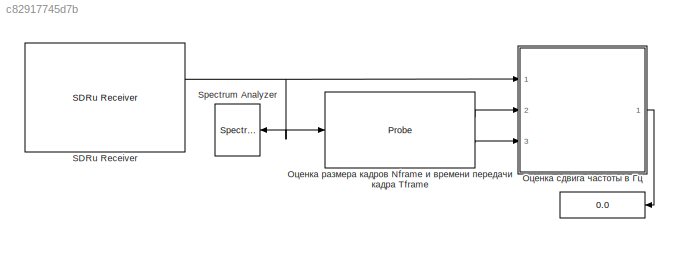
MODEL slx_c82917745d7b
KIND model
CONFIG AbsTol = auto
CONFIG EnableMultiTasking = off
CONFIG FixedStep = auto
CONFIG MaxStep = auto
CONFIG MinStep = auto
CONFIG PreLoadFcn = Fs = 200e3; % Частота дискретизации, выборок в с \n\n% Инициализация параметров приема устройства USRP \nrxradio.MasterClockRate   = 20e6;   % тактовая частота, Гц \nrxradio.CenterFrequency   = 450e6; % центральная частота \nrxradio.Gain                    = 40;       % усиление, дБ \n% Коэффициент децимации\nrxradio.DecimationFactor  = rxradio.MasterClockRate/Fs; \nrxradio.SamplesPerFrame  = 4096;  % выб...<+13ch>
CONFIG RelTol = 1e-3
CONFIG SampleTimeConstraint = Unconstrained
CONFIG Solver = VariableStepAuto
CONFIG SolverName = VariableStepAuto
CONFIG StartTime = 0.0
CONFIG StopTime = inf
BLOCK [Display]  
  Decimation = 1
  Ports = [1]
BLOCK [Reference] SDRu Receiver  REF=commsdrhw_v2/SDRu Receiver
  Ports = [0, 2]
  SourceBlock = commsdrhw_v2/SDRu Receiver
  SourceProductBaseCode = USRP
  SourceProductName = Communications System Toolbox Support Package for USRP(R) Radio
  SourceType = SDRu Receiver
BLOCK [SpectrumAnalyzer] Spectrum Analyzer
  Ports = [1]
  ScopeSpecificationString = spbscopes.SpectrumAnalyzerBlockCfg('CurrentConfiguration', extmgr.ConfigurationSet(extmgr.Configuration('Core','General UI',true,'FigureColor',[1 1 1]),extmgr.Configuration('Core','Source UI',true),extmgr.Configuration('Sources','WiredSimulink',true),extmgr.Configuration('Visuals','Spectrum',true,'AxesProperties',struct('Color',{[1 1 1],[1 1 1]},'XColor',{[0 0 0],[0 0 0]},'YColor',{[0 0 0],[0 0 0]...<+1673ch>
BLOCK [Probe] Оценка размера кадров Nframe и времени передачи кадра Tframe
  Ports = [1, 2]
  ProbeComplexSignal = off
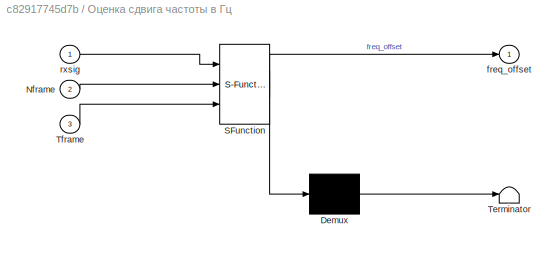
BLOCK [SubSystem] Оценка сдвига частоты в Гц
  ErrorFcn = Stateflow.Translate.translate
  PermitHierarchicalResolution = ExplicitOnly
  Ports = [3, 1]
  RequestExecContextInheritance = off
  SFBlockType = MATLAB Function
  TreatAsAtomicUnit = on
BLOCK [Demux] Оценка сдвига частоты в Гц/ Demux 
  Outputs = 1
  Ports = [1, 1]
BLOCK [S-Function] Оценка сдвига частоты в Гц/ SFunction 
  EnableBusSupport = on
  FunctionName = sf_sfun
  PortCounts = [3 2]
  Ports = [3, 2]
  SFcnIsStateOwnerBlock = off
  SFunctionDeploymentMode = off
  Tag = Stateflow S-Function pr332_sdruFreqCalibRx1 2
BLOCK [Terminator] Оценка сдвига частоты в Гц/ Terminator 
BLOCK [Inport] Оценка сдвига частоты в Гц/Nframe
  IconDisplay = Port number
  Port = 2
BLOCK [Inport] Оценка сдвига частоты в Гц/Tframe
  IconDisplay = Port number
  Port = 3
BLOCK [Outport] Оценка сдвига частоты в Гц/freq_offset
  IconDisplay = Port number
BLOCK [Inport] Оценка сдвига частоты в Гц/rxsig
  IconDisplay = Port number
NET SDRu Receiver:1 -> Spectrum Analyzer:1, Оценка размера кадров Nframe и времени передачи кадра Tframe:1, Оценка сдвига частоты в Гц:1
LINE Оценка размера кадров Nframe и времени передачи кадра Tframe:1 -> Оценка сдвига частоты в Гц:2
LINE Оценка размера кадров Nframe и времени передачи кадра Tframe:2 -> Оценка сдвига частоты в Гц:3
LINE Оценка сдвига частоты в Гц:1 ->  :1
note: NET lines group one-source signal fan-out (src -> all destinations, sorted); 1:1 wires keep LINE
CHART Оценка сдвига частоты в Гц states=1 transitions=1
  STATE_LABEL 'eML_blk_kernel()'
  STATE_LABEL 'SCRIPT:\nfunction freq_offset  = freqoffset(rxsig, Nframe, Tframe)\n% freq_offset - сдвиг частот, Гц\n% rxsig - входной сигнал\n% Nframe - число выборок в принимаемом кадре\n% Tframe - время передачи кадра\nTs = Tframe(1)/Nframe;  % время дискретизации\nFs = 1/Ts;              % частота дискретизации входного сигнала, Гц\nnfft = 2048;    % размерность БПФ\ndelta_f = Fs/nfft; % БПФ разрешение по частоте // ...<+501ch>'
